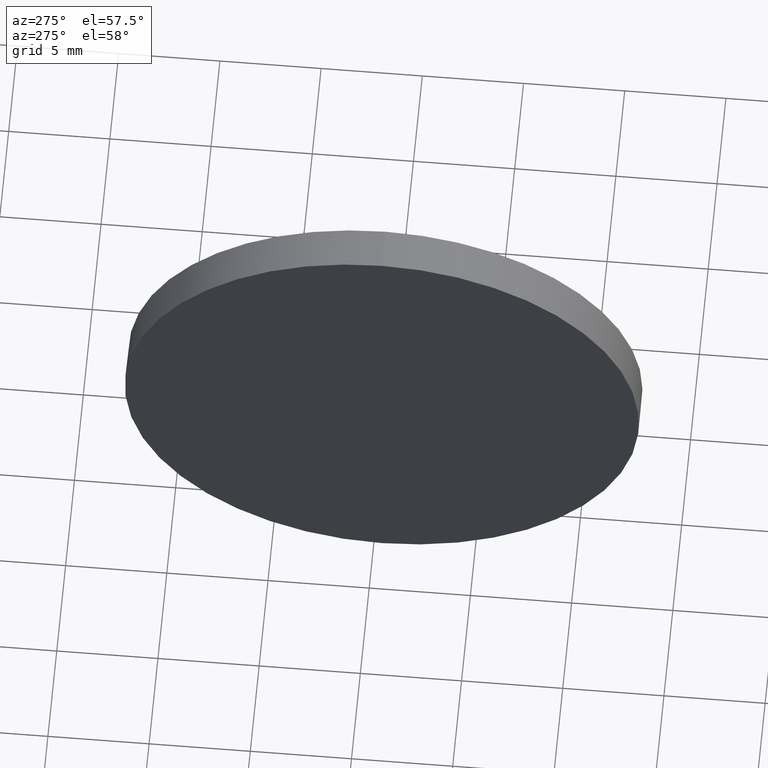
[diagram: clean part render]
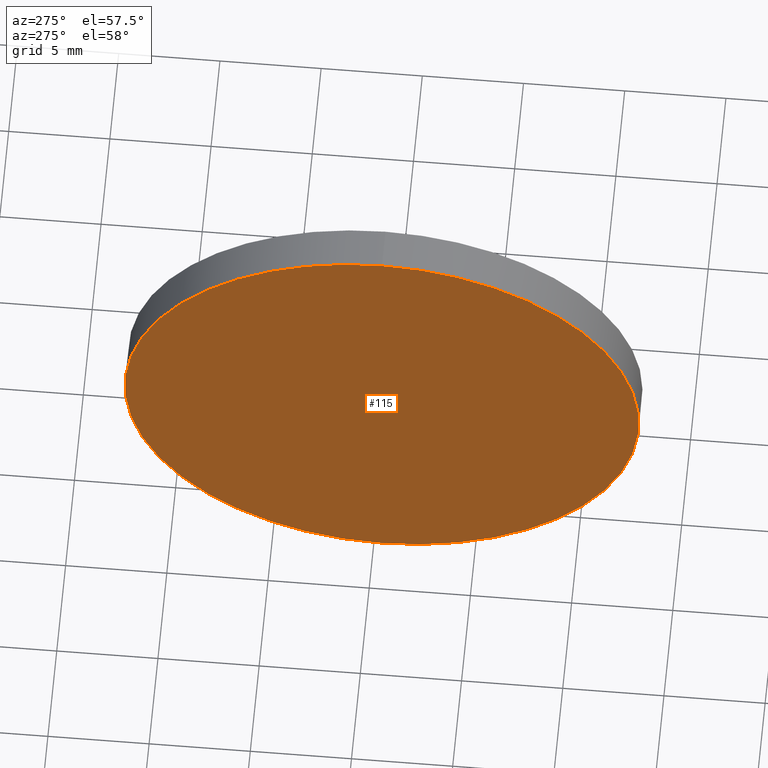
[diagram: same view with one face highlighted and labeled with its STEP entity id]
A machine part, auxiliary view. The second image highlights one B-rep face of the part: STEP entity #115.
In plain terms, the highlighted planar face has unit normal (1, 0, 0).
Its self-contained STEP definition (entity closure, byte-faithful):
#4 = DIRECTION ( 'NONE',  ( -1.000000000000000000, -0.0000000000000000000, -0.0000000000000000000 ) ) ;
#16 = CARTESIAN_POINT ( 'NONE',  ( 477.3220861786303400, 184.5773825551713100, -12.69999999999998900 ) ) ;
#29 = PLANE ( 'NONE',  #153 ) ;
#37 = ORIENTED_EDGE ( 'NONE', *, *, #80, .T. ) ;
#44 = DIRECTION ( 'NONE',  ( 0.0000000000000000000, 0.0000000000000000000, 1.000000000000000000 ) ) ;
#45 = CARTESIAN_POINT ( 'NONE',  ( 477.3220861786303400, 184.5773825551713100, 12.69999999999998900 ) ) ;
#58 = DIRECTION ( 'NONE',  ( 1.000000000000000000, 0.0000000000000000000, 0.0000000000000000000 ) ) ;
#79 = CIRCLE ( 'NONE', #167, 12.69999999999998900 ) ;
#80 = EDGE_CURVE ( 'NONE', #121, #107, #79, .T. ) ;
#91 = FACE_OUTER_BOUND ( 'NONE', #125, .T. ) ;
#95 = EDGE_CURVE ( 'NONE', #107, #121, #126, .T. ) ;
#101 = DIRECTION ( 'NONE',  ( -1.000000000000000000, -0.0000000000000000000, -0.0000000000000000000 ) ) ;
#107 = VERTEX_POINT ( 'NONE', #45 ) ;
#115 = ADVANCED_FACE ( 'NONE', ( #91 ), #29, .F. ) ;
#116 = DIRECTION ( 'NONE',  ( 0.0000000000000000000, 0.0000000000000000000, 1.000000000000000000 ) ) ;
#121 = VERTEX_POINT ( 'NONE', #16 ) ;
#125 = EDGE_LOOP ( 'NONE', ( #162, #37 ) ) ;
#126 = CIRCLE ( 'NONE', #178, 12.69999999999998900 ) ;
#137 = CARTESIAN_POINT ( 'NONE',  ( 477.3220861786303400, 184.5773825551713100, 0.0000000000000000000 ) ) ;
#144 = CARTESIAN_POINT ( 'NONE',  ( 477.3220861786303400, 184.5773825551713100, 0.0000000000000000000 ) ) ;
#153 = AXIS2_PLACEMENT_3D ( 'NONE', #137, #58, #163 ) ;
#158 = CARTESIAN_POINT ( 'NONE',  ( 477.3220861786303400, 184.5773825551713100, 0.0000000000000000000 ) ) ;
#162 = ORIENTED_EDGE ( 'NONE', *, *, #95, .T. ) ;
#163 = DIRECTION ( 'NONE',  ( 0.0000000000000000000, 0.0000000000000000000, -1.000000000000000000 ) ) ;
#167 = AXIS2_PLACEMENT_3D ( 'NONE', #144, #101, #44 ) ;
#178 = AXIS2_PLACEMENT_3D ( 'NONE', #158, #4, #116 ) ;